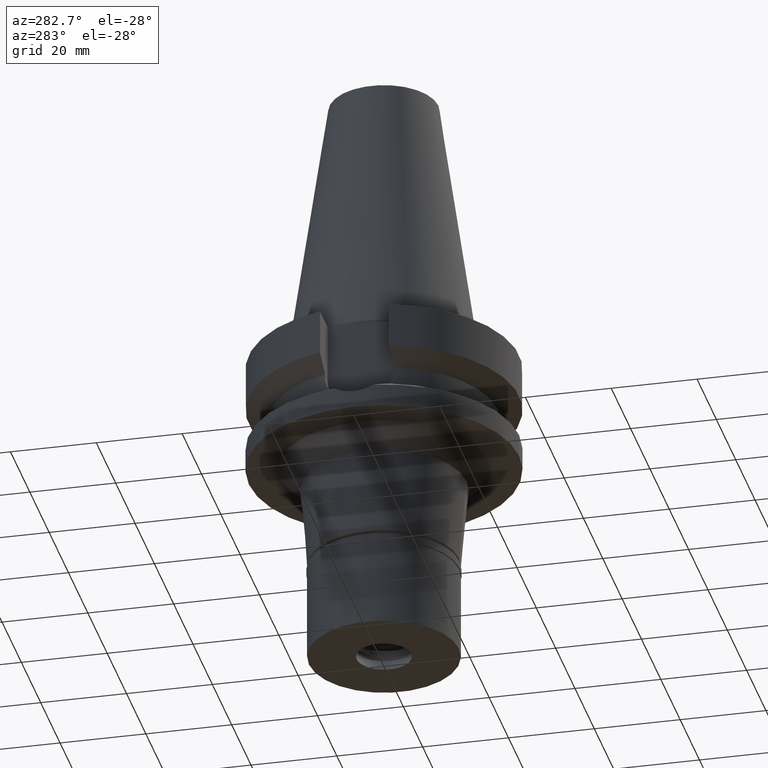
[diagram: clean part render]
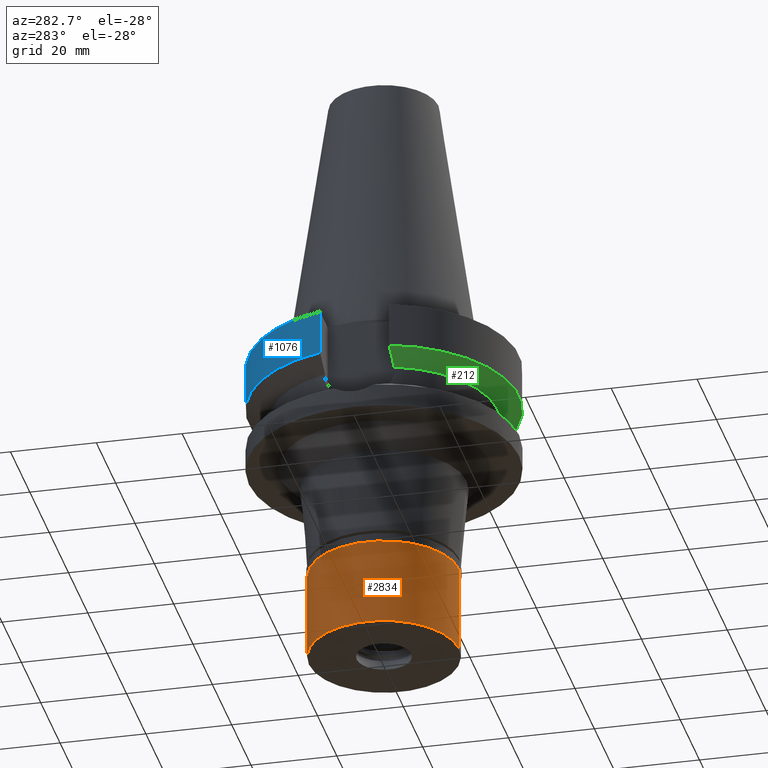
[diagram: same view with three faces highlighted in distinct colors, each labeled with its STEP entity id]
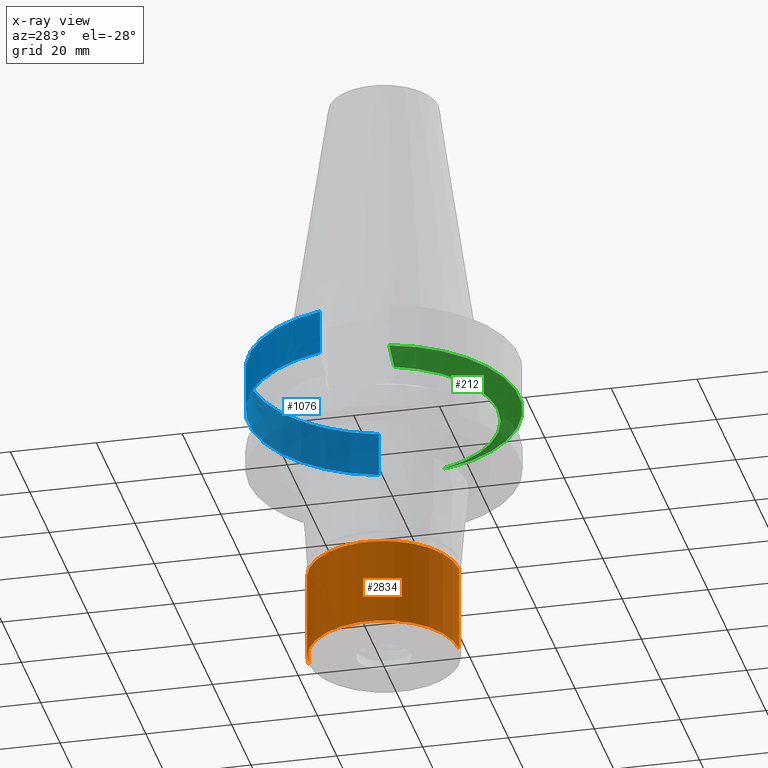
[diagram: x-ray of the same camera — body ghosted, the three highlighted faces saturated]
A machine part, auxiliary view with three faces highlighted in distinct colors.
The next image is the same camera in x-ray (body ghosted, the three faces saturated) — at least one of them is partly hidden behind the body in this view.
Their STEP definitions:

[orange] entity #2834 — the highlighted cylindrical surface (partial cylindrical patch) has radius 17.5 mm, axis along (0, 0, -1).
#83 = DIRECTION ( 'NONE',  ( 0.0000000000000000000, 0.0000000000000000000, -1.000000000000000000 ) ) ;
#246 = CARTESIAN_POINT ( 'NONE',  ( 0.0000000000000000000, -17.50000000000000000, -2.000000000000000000 ) ) ;
#298 = CARTESIAN_POINT ( 'NONE',  ( 0.0000000000000000000, 0.0000000000000000000, -2.000000000000000000 ) ) ;
#325 = DIRECTION ( 'NONE',  ( 0.0000000000000000000, 0.0000000000000000000, -1.000000000000000000 ) ) ;
#620 = ORIENTED_EDGE ( 'NONE', *, *, #2968, .T. ) ;
#638 = DIRECTION ( 'NONE',  ( 0.0000000000000000000, -1.000000000000000000, 0.0000000000000000000 ) ) ;
#707 = DIRECTION ( 'NONE',  ( 0.0000000000000000000, 0.0000000000000000000, 1.000000000000000000 ) ) ;
#731 = EDGE_CURVE ( 'NONE', #1485, #924, #1502, .T. ) ;
#752 = CARTESIAN_POINT ( 'NONE',  ( 0.0000000000000000000, 17.50000000000000000, -22.50000000000000000 ) ) ;
#757 = LINE ( 'NONE', #2627, #1611 ) ;
#781 = CARTESIAN_POINT ( 'NONE',  ( 0.0000000000000000000, -17.50000000000000000, -2.000000000000000000 ) ) ;
#924 = VERTEX_POINT ( 'NONE', #1563 ) ;
#1325 = AXIS2_PLACEMENT_3D ( 'NONE', #298, #325, #2214 ) ;
#1326 = VECTOR ( 'NONE', #2659, 1000.000000000000000 ) ;
#1327 = VERTEX_POINT ( 'NONE', #2223 ) ;
#1376 = CYLINDRICAL_SURFACE ( 'NONE', #3048, 17.50000000000000000 ) ;
#1485 = VERTEX_POINT ( 'NONE', #246 ) ;
#1502 = LINE ( 'NONE', #781, #1326 ) ;
#1541 = ORIENTED_EDGE ( 'NONE', *, *, #1606, .T. ) ;
#1563 = CARTESIAN_POINT ( 'NONE',  ( 0.0000000000000000000, -17.50000000000000000, -22.50000000000000000 ) ) ;
#1606 = EDGE_CURVE ( 'NONE', #1327, #2484, #757, .T. ) ;
#1611 = VECTOR ( 'NONE', #83, 1000.000000000000000 ) ;
#1641 = DIRECTION ( 'NONE',  ( 0.0000000000000000000, 1.000000000000000000, 0.0000000000000000000 ) ) ;
#1666 = CIRCLE ( 'NONE', #1325, 17.50000000000000000 ) ;
#1669 = CIRCLE ( 'NONE', #2547, 17.50000000000000000 ) ;
#1677 = ORIENTED_EDGE ( 'NONE', *, *, #731, .F. ) ;
#1830 = FACE_OUTER_BOUND ( 'NONE', #1840, .T. ) ;
#1840 = EDGE_LOOP ( 'NONE', ( #620, #1677, #2831, #1541 ) ) ;
#2214 = DIRECTION ( 'NONE',  ( 0.0000000000000000000, -1.000000000000000000, 0.0000000000000000000 ) ) ;
#2219 = EDGE_CURVE ( 'NONE', #1485, #1327, #1666, .T. ) ;
#2223 = CARTESIAN_POINT ( 'NONE',  ( 0.0000000000000000000, 17.50000000000000000, -2.000000000000000000 ) ) ;
#2316 = DIRECTION ( 'NONE',  ( 0.0000000000000000000, 0.0000000000000000000, -1.000000000000000000 ) ) ;
#2484 = VERTEX_POINT ( 'NONE', #752 ) ;
#2547 = AXIS2_PLACEMENT_3D ( 'NONE', #2597, #707, #1641 ) ;
#2597 = CARTESIAN_POINT ( 'NONE',  ( 0.0000000000000000000, 0.0000000000000000000, -22.50000000000000000 ) ) ;
#2627 = CARTESIAN_POINT ( 'NONE',  ( 0.0000000000000000000, 17.50000000000000000, -2.000000000000000000 ) ) ;
#2659 = DIRECTION ( 'NONE',  ( 0.0000000000000000000, 0.0000000000000000000, -1.000000000000000000 ) ) ;
#2770 = CARTESIAN_POINT ( 'NONE',  ( 0.0000000000000000000, 0.0000000000000000000, 0.0000000000000000000 ) ) ;
#2831 = ORIENTED_EDGE ( 'NONE', *, *, #2219, .T. ) ;
#2834 = ADVANCED_FACE ( 'NONE', ( #1830 ), #1376, .T. ) ;
#2968 = EDGE_CURVE ( 'NONE', #2484, #924, #1669, .T. ) ;
#3048 = AXIS2_PLACEMENT_3D ( 'NONE', #2770, #2316, #638 ) ;

[blue] entity #1076 — the highlighted cylindrical surface (partial cylindrical patch) has radius 31.5 mm, axis along (0, 0, -1).
#62 = DIRECTION ( 'NONE',  ( -1.822505241512990391E-08, 6.894758849760961271E-08, 0.9999999999999973355 ) ) ;
#64 = EDGE_LOOP ( 'NONE', ( #1859, #1371, #2184, #225 ) ) ;
#125 = VERTEX_POINT ( 'NONE', #299 ) ;
#149 = CIRCLE ( 'NONE', #1091, 31.50000000000000000 ) ;
#225 = ORIENTED_EDGE ( 'NONE', *, *, #1686, .T. ) ;
#299 = CARTESIAN_POINT ( 'NONE',  ( -30.45402162465000018, 8.050004154360999920, -11.56546823196000062 ) ) ;
#405 = CARTESIAN_POINT ( 'NONE',  ( 30.45402272279000044, 8.050000000000000711, -1.000000000000000000 ) ) ;
#512 = DIRECTION ( 'NONE',  ( 0.0000000000000000000, 0.0000000000000000000, -1.000000000000000000 ) ) ;
#527 = CYLINDRICAL_SURFACE ( 'NONE', #2753, 31.50000000000000000 ) ;
#555 = DIRECTION ( 'NONE',  ( 0.0000000000000000000, 1.000000000000000000, 0.0000000000000000000 ) ) ;
#768 = VERTEX_POINT ( 'NONE', #405 ) ;
#844 = DIRECTION ( 'NONE',  ( 1.039363061299018430E-07, 3.932017778502066087E-07, -0.9999999999999173994 ) ) ;
#848 = EDGE_CURVE ( 'NONE', #2868, #125, #2482, .T. ) ;
#873 = CARTESIAN_POINT ( 'NONE',  ( 0.0000000000000000000, 2.107433444312999912E-14, -1.000000000000000000 ) ) ;
#1036 = VECTOR ( 'NONE', #844, 999.9999999999998863 ) ;
#1076 = ADVANCED_FACE ( 'NONE', ( #1708 ), #527, .T. ) ;
#1091 = AXIS2_PLACEMENT_3D ( 'NONE', #873, #2036, #2027 ) ;
#1220 = DIRECTION ( 'NONE',  ( 0.0000000000000000000, 0.0000000000000000000, 1.000000000000000000 ) ) ;
#1371 = ORIENTED_EDGE ( 'NONE', *, *, #2313, .T. ) ;
#1398 = CARTESIAN_POINT ( 'NONE',  ( -30.45402272279000044, 8.050000000000000711, -1.000000000000000000 ) ) ;
#1686 = EDGE_CURVE ( 'NONE', #2509, #125, #2843, .T. ) ;
#1708 = FACE_OUTER_BOUND ( 'NONE', #64, .T. ) ;
#1737 = DIRECTION ( 'NONE',  ( 0.0000000000000000000, -1.000000000000000000, 0.0000000000000000000 ) ) ;
#1859 = ORIENTED_EDGE ( 'NONE', *, *, #848, .F. ) ;
#1894 = CARTESIAN_POINT ( 'NONE',  ( 30.45402291533999772, 8.049999271533000211, -11.56551221380999905 ) ) ;
#1976 = CARTESIAN_POINT ( 'NONE',  ( 30.45402291533999772, 8.049999271533000211, -11.56551221380999905 ) ) ;
#2027 = DIRECTION ( 'NONE',  ( 0.0000000000000000000, 1.000000000000000000, 0.0000000000000000000 ) ) ;
#2036 = DIRECTION ( 'NONE',  ( 0.0000000000000000000, 0.0000000000000000000, -1.000000000000000000 ) ) ;
#2184 = ORIENTED_EDGE ( 'NONE', *, *, #2229, .F. ) ;
#2229 = EDGE_CURVE ( 'NONE', #2509, #768, #2472, .T. ) ;
#2313 = EDGE_CURVE ( 'NONE', #2868, #768, #149, .T. ) ;
#2472 = LINE ( 'NONE', #1976, #2594 ) ;
#2482 = LINE ( 'NONE', #2526, #1036 ) ;
#2509 = VERTEX_POINT ( 'NONE', #1894 ) ;
#2526 = CARTESIAN_POINT ( 'NONE',  ( -30.45402272279000044, 8.050000000000000711, -1.000000000000000000 ) ) ;
#2594 = VECTOR ( 'NONE', #62, 1000.000000000000227 ) ;
#2653 = CARTESIAN_POINT ( 'NONE',  ( 0.0000000000000000000, 2.107433444312999912E-14, 72.08499999999999375 ) ) ;
#2665 = CARTESIAN_POINT ( 'NONE',  ( 0.0000000000000000000, 1.065333950388000029E-14, -11.56550565266999975 ) ) ;
#2747 = AXIS2_PLACEMENT_3D ( 'NONE', #2665, #1220, #555 ) ;
#2753 = AXIS2_PLACEMENT_3D ( 'NONE', #2653, #512, #1737 ) ;
#2843 = CIRCLE ( 'NONE', #2747, 31.50000000000000000 ) ;
#2868 = VERTEX_POINT ( 'NONE', #1398 ) ;

[green] entity #212 — the highlighted conical surface has half-angle 60 deg.
#73 = CARTESIAN_POINT ( 'NONE',  ( 25.24772266958000344, -8.050000000000000711, -14.45225699861000024 ) ) ;
#99 = DIRECTION ( 'NONE',  ( 0.0000000000000000000, 0.0000000000000000000, 1.000000000000000000 ) ) ;
#130 = DIRECTION ( 'NONE',  ( 0.9527442516822307583, -0.3037735849057093818, 0.0000000000000000000 ) ) ;
#177 = EDGE_CURVE ( 'NONE', #621, #2266, #2539, .T. ) ;
#212 = ADVANCED_FACE ( 'NONE', ( #2908 ), #1608, .T. ) ;
#280 = CARTESIAN_POINT ( 'NONE',  ( 28.57294910756673545, -8.050008307485521541, -12.61548012761867987 ) ) ;
#328 = DIRECTION ( 'NONE',  ( 0.0000000000000000000, 0.0000000000000000000, 1.000000000000000000 ) ) ;
#528 = VERTEX_POINT ( 'NONE', #961 ) ;
#586 = DIRECTION ( 'NONE',  ( 0.0000000000000000000, 0.0000000000000000000, -1.000000000000000000 ) ) ;
#609 = B_SPLINE_CURVE_WITH_KNOTS ( 'NONE', 3,
 ( #2938, #2974, #1791, #2244 ),
 .UNSPECIFIED., .F., .F.,
 ( 4, 4 ),
 ( 0.0000000000000000000, 1.000000000000000000 ),
 .UNSPECIFIED. ) ;
#621 = VERTEX_POINT ( 'NONE', #1257 ) ;
#668 = EDGE_CURVE ( 'NONE', #621, #1795, #1980, .T. ) ;
#800 = CARTESIAN_POINT ( 'NONE',  ( 26.83757688499800764, -8.050003147935163028, -13.57772988640848055 ) ) ;
#961 = CARTESIAN_POINT ( 'NONE',  ( -30.45402291528999683, -8.049999271742999341, -11.56551221191999979 ) ) ;
#1038 = DIRECTION ( 'NONE',  ( 0.0000000000000000000, 1.000000000000000000, 0.0000000000000000000 ) ) ;
#1087 = ORIENTED_EDGE ( 'NONE', *, *, #177, .F. ) ;
#1249 = EDGE_LOOP ( 'NONE', ( #2514, #1087, #2886, #2289 ) ) ;
#1257 = CARTESIAN_POINT ( 'NONE',  ( 25.24772266958000344, -8.050000000000000711, -14.45225699861000024 ) ) ;
#1608 = CONICAL_SURFACE ( 'NONE', #2841, 29.00000000000000000, 1.047197551196400456 ) ;
#1698 = CARTESIAN_POINT ( 'NONE',  ( 30.45402272279000044, -8.049999999999000622, -11.56550565266999975 ) ) ;
#1774 = EDGE_CURVE ( 'NONE', #528, #2266, #609, .T. ) ;
#1791 = CARTESIAN_POINT ( 'NONE',  ( -26.83754596496597244, -8.049990786598570480, -13.57774899429655235 ) ) ;
#1795 = VERTEX_POINT ( 'NONE', #2012 ) ;
#1946 = CARTESIAN_POINT ( 'NONE',  ( -25.24772413676000227, -8.049995398395999757, -14.45229216087999902 ) ) ;
#1980 = B_SPLINE_CURVE_WITH_KNOTS ( 'NONE', 3,
 ( #73, #800, #280, #1698 ),
 .UNSPECIFIED., .F., .F.,
 ( 4, 4 ),
 ( 0.0000000000000000000, 1.000000000000000000 ),
 .UNSPECIFIED. ) ;
#2012 = CARTESIAN_POINT ( 'NONE',  ( 30.45402272279000044, -8.049999999999000622, -11.56550565266999975 ) ) ;
#2191 = EDGE_CURVE ( 'NONE', #528, #1795, #2300, .T. ) ;
#2228 = DIRECTION ( 'NONE',  ( 0.0000000000000000000, -1.000000000000000000, 0.0000000000000000000 ) ) ;
#2230 = CARTESIAN_POINT ( 'NONE',  ( 0.0000000000000000000, 1.065333950388000029E-14, -13.00888132564000088 ) ) ;
#2244 = CARTESIAN_POINT ( 'NONE',  ( -25.24772413676000227, -8.049995398395999757, -14.45229216087999902 ) ) ;
#2266 = VERTEX_POINT ( 'NONE', #1946 ) ;
#2289 = ORIENTED_EDGE ( 'NONE', *, *, #2191, .F. ) ;
#2300 = CIRCLE ( 'NONE', #2703, 31.50000000000000000 ) ;
#2461 = CARTESIAN_POINT ( 'NONE',  ( 0.0000000000000000000, 1.065333950388000029E-14, -14.45225699861000024 ) ) ;
#2514 = ORIENTED_EDGE ( 'NONE', *, *, #1774, .T. ) ;
#2539 = CIRCLE ( 'NONE', #3042, 26.50000000000000711 ) ;
#2675 = CARTESIAN_POINT ( 'NONE',  ( 0.0000000000000000000, 1.065333950388000029E-14, -11.56550565266999975 ) ) ;
#2703 = AXIS2_PLACEMENT_3D ( 'NONE', #2675, #99, #2228 ) ;
#2841 = AXIS2_PLACEMENT_3D ( 'NONE', #2230, #328, #1038 ) ;
#2886 = ORIENTED_EDGE ( 'NONE', *, *, #668, .T. ) ;
#2908 = FACE_OUTER_BOUND ( 'NONE', #1249, .T. ) ;
#2938 = CARTESIAN_POINT ( 'NONE',  ( -30.45402291528999683, -8.049999271742999341, -11.56551221191999979 ) ) ;
#2974 = CARTESIAN_POINT ( 'NONE',  ( -28.57292310258600310, -8.049998544434455283, -12.61549616206271551 ) ) ;
#3042 = AXIS2_PLACEMENT_3D ( 'NONE', #2461, #586, #130 ) ;